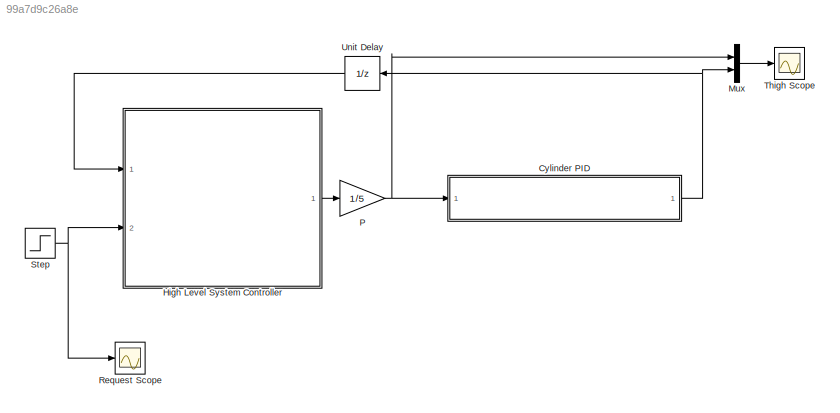
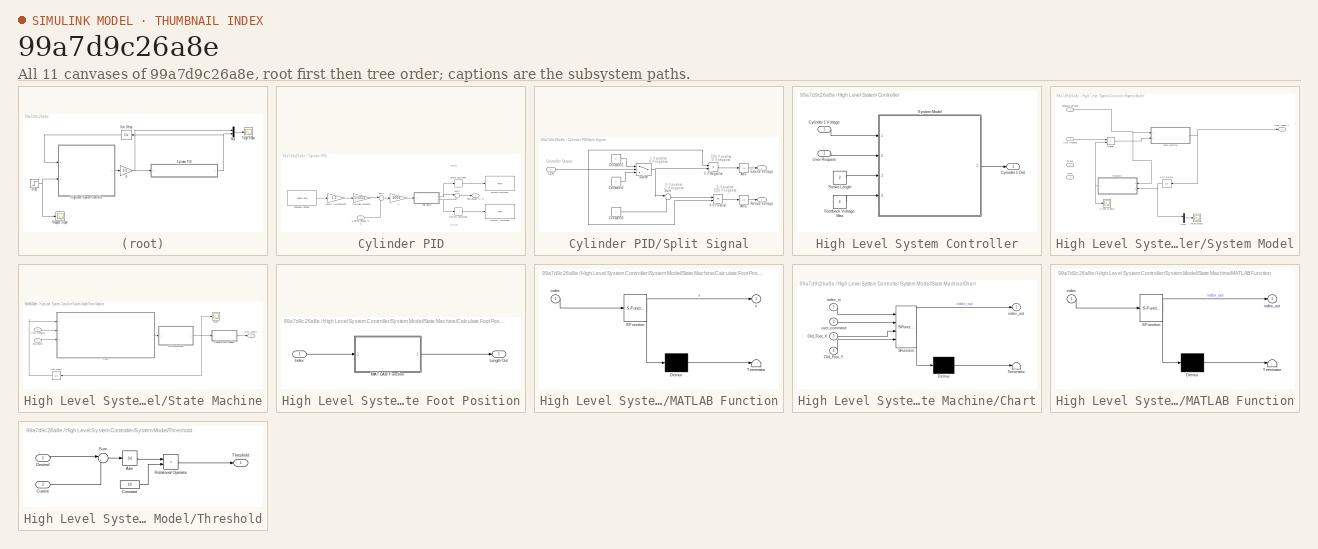
[diagram: thumbnail index - all 11 canvases of the model, root first then tree order]
MODEL slx_99a7d9c26a8e
KIND model
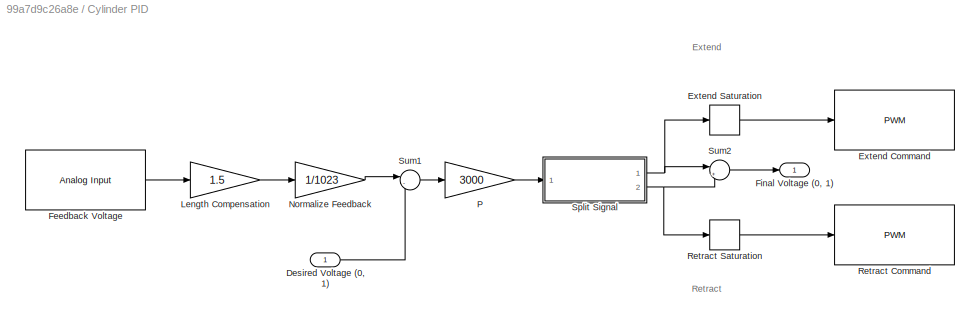
BLOCK [SubSystem] Cylinder PID
  Ports = [1, 1]
  RequestExecContextInheritance = off
BLOCK [Inport] Cylinder PID/Desired Voltage (0, 1)
  IconDisplay = Port number
BLOCK [Reference] Cylinder PID/Extend Command  REF=arduinolib/PWM
  Ports = [1]
  SourceBlock = arduinolib/PWM
  SourceType = Arduino PWM
  pinNumber = 5
BLOCK [MinMax] Cylinder PID/Extend Saturation
  Function = max
  InputSameDT = off
  OutDataTypeStr = int16
  OutMax = [255]
  OutMin = [0]
  Ports = [1, 1]
BLOCK [Reference] Cylinder PID/Feedback Voltage  REF=arduinolib/Analog Input
  Ports = [0, 1]
  SourceBlock = arduinolib/Analog Input
  SourceType = Arduino Analog Input
  pinNumber = 2
  sampleTime = -1
BLOCK [Outport] Cylinder PID/Final Voltage (0, 1)
  IconDisplay = Port number
BLOCK [Gain] Cylinder PID/Length Compensation
  Gain = 1.5
  OutDataTypeStr = Inherit: Inherit via internal rule
  ParamDataTypeStr = Inherit: Inherit via internal rule
  SaturateOnIntegerOverflow = off
BLOCK [Gain] Cylinder PID/Normalize Feedback
  Gain = 1/1023
  OutDataTypeStr = Inherit: Inherit via internal rule
  ParamDataTypeStr = Inherit: Inherit via internal rule
  SaturateOnIntegerOverflow = off
BLOCK [Gain] Cylinder PID/P
  Gain = 3000
  OutDataTypeStr = Inherit: Inherit via internal rule
  ParamDataTypeStr = Inherit: Inherit via internal rule
  SaturateOnIntegerOverflow = off
BLOCK [Reference] Cylinder PID/Retract Command  REF=arduinolib/PWM
  Ports = [1]
  SourceBlock = arduinolib/PWM
  SourceType = Arduino PWM
  pinNumber = 7
BLOCK [MinMax] Cylinder PID/Retract Saturation
  Function = max
  InputSameDT = off
  OutDataTypeStr = int16
  OutMax = [255]
  OutMin = [0]
  Ports = [1, 1]
BLOCK [SubSystem] Cylinder PID/Split Signal
  Ports = [1, 2]
  RequestExecContextInheritance = off
BLOCK [Product] Cylinder PID/Split Signal/0 If Positive
  InputSameDT = off
  OutDataTypeStr = Inherit: Inherit via internal rule
  Ports = [2, 1]
  RndMeth = Floor
  SaturateOnIntegerOverflow = off
BLOCK [Product] Cylinder PID/Split Signal/0 if Negative
  InputSameDT = off
  OutDataTypeStr = Inherit: Inherit via internal rule
  Ports = [2, 1]
  RndMeth = Floor
  SaturateOnIntegerOverflow = off
BLOCK [Abs] Cylinder PID/Split Signal/Abs
  SaturateOnIntegerOverflow = off
BLOCK [Abs] Cylinder PID/Split Signal/Abs1
  SaturateOnIntegerOverflow = off
BLOCK [Inport] Cylinder PID/Split Signal/C(S)
  IconDisplay = Port number
BLOCK [Constant] Cylinder PID/Split Signal/Constant1
BLOCK [Constant] Cylinder PID/Split Signal/Constant2
  Value = 0
BLOCK [Constant] Cylinder PID/Split Signal/Constant3
BLOCK [Outport] Cylinder PID/Split Signal/Extend Voltage
  IconDisplay = Port number
BLOCK [Outport] Cylinder PID/Split Signal/Retract Voltage
  IconDisplay = Port number
  Port = 2
BLOCK [Sum] Cylinder PID/Split Signal/Sum
  IconShape = round
  InputSameDT = off
  Inputs = |+-
  OutDataTypeStr = Inherit: Inherit via internal rule
  Ports = [2, 1]
  SaturateOnIntegerOverflow = off
BLOCK [Switch] Cylinder PID/Split Signal/Switch
  InputSameDT = off
  SaturateOnIntegerOverflow = off
BLOCK [Sum] Cylinder PID/Sum1
  IconShape = round
  InputSameDT = off
  Inputs = |-+
  OutDataTypeStr = Inherit: Inherit via internal rule
  Ports = [2, 1]
  SaturateOnIntegerOverflow = off
BLOCK [Sum] Cylinder PID/Sum2
  IconShape = round
  InputSameDT = off
  Inputs = |++
  OutDataTypeStr = Inherit: Inherit via internal rule
  Ports = [2, 1]
  SaturateOnIntegerOverflow = off
BLOCK [SubSystem] High Level System Controller
  Ports = [2, 1]
  RequestExecContextInheritance = off
BLOCK [Outport] High Level System Controller/Cylinder 1 Out
  IconDisplay = Port number
BLOCK [Inport] High Level System Controller/Cylinder 1 Voltage
  IconDisplay = Port number
  OutDataTypeStr = double
BLOCK [Constant] High Level System Controller/Feedback Voltage Max
  Value = 4
BLOCK [Constant] High Level System Controller/Stroke Length
  Value = 3
BLOCK [SubSystem] High Level System Controller/System Model
  Ports = [4, 1]
  RequestExecContextInheritance = off
BLOCK [Scope] High Level System Controller/System Model/Close to Equal
  Floating = off
  LimitDataPoints = off
  NumInputPorts = 1
  Ports = [1]
  SaveName = ScopeData5
  ShowLegends = off
  TimeRange = 1
  YMax = 2.8
  YMin = 2.53334
  ZoomMode = xonly
BLOCK [Inport] High Level System Controller/System Model/Feedback Voltage
  IconDisplay = Port number
BLOCK [Mux] High Level System Controller/System Model/Mux1
  DisplayOption = bar
  Inputs = 2
  Ports = [2, 1]
BLOCK [Outport] High Level System Controller/System Model/New Length 1
  IconDisplay = Port number
  OutDataTypeStr = double
BLOCK [Product] High Level System Controller/System Model/Product
  InputSameDT = off
  OutDataTypeStr = Inherit: Inherit via internal rule
  Ports = [2, 1]
  RndMeth = Floor
  SaturateOnIntegerOverflow = off
BLOCK [SubSystem] High Level System Controller/System Model/State Machine
  Ports = [2, 1]
  RequestExecContextInheritance = off
BLOCK [SubSystem] High Level System Controller/System Model/State Machine/Calculate Foot Position
  Ports = [1, 1]
  RequestExecContextInheritance = off
BLOCK [Inport] High Level System Controller/System Model/State Machine/Calculate Foot Position/Index
  IconDisplay = Port number
BLOCK [Outport] High Level System Controller/System Model/State Machine/Calculate Foot Position/Length Out
  IconDisplay = Port number
BLOCK [SubSystem] High Level System Controller/System Model/State Machine/Calculate Foot Position/MATLAB Function
  ErrorFcn = Stateflow.Translate.translate
  PermitHierarchicalResolution = ExplicitOnly
  Ports = [1, 1]
  RequestExecContextInheritance = off
  SFBlockType = MATLAB Function
  TreatAsAtomicUnit = on
BLOCK [Demux] High Level System Controller/System Model/State Machine/Calculate Foot Position/MATLAB Function/ Demux 
  Outputs = 1
  Ports = [1, 1]
BLOCK [S-Function] High Level System Controller/System Model/State Machine/Calculate Foot Position/MATLAB Function/ SFunction 
  EnableBusSupport = on
  FunctionName = sf_sfun
  PortCounts = [1 2]
  Ports = [1, 2]
  Tag = Stateflow S-Function SingleCylinderTest 1
BLOCK [Terminator] High Level System Controller/System Model/State Machine/Calculate Foot Position/MATLAB Function/ Terminator 
BLOCK [Inport] High Level System Controller/System Model/State Machine/Calculate Foot Position/MATLAB Function/index
  IconDisplay = Port number
BLOCK [Outport] High Level System Controller/System Model/State Machine/Calculate Foot Position/MATLAB Function/x
  IconDisplay = Port number
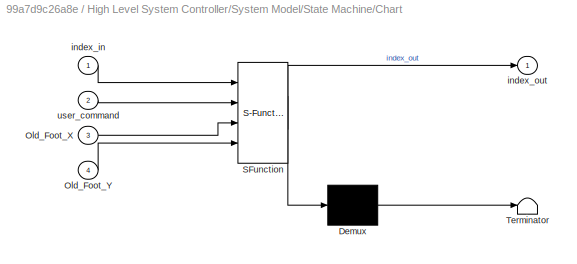
BLOCK [SubSystem] High Level System Controller/System Model/State Machine/Chart
  ErrorFcn = Stateflow.Translate.translate
  PermitHierarchicalResolution = ExplicitOnly
  Ports = [4, 1]
  RequestExecContextInheritance = off
  SFBlockType = Chart
  TreatAsAtomicUnit = on
BLOCK [Demux] High Level System Controller/System Model/State Machine/Chart/ Demux 
  Outputs = 1
  Ports = [1, 1]
BLOCK [S-Function] High Level System Controller/System Model/State Machine/Chart/ SFunction 
  EnableBusSupport = on
  FunctionName = sf_sfun
  PortCounts = [4 2]
  Ports = [4, 2]
  Tag = Stateflow S-Function SingleCylinderTest 3
BLOCK [Terminator] High Level System Controller/System Model/State Machine/Chart/ Terminator 
BLOCK [Inport] High Level System Controller/System Model/State Machine/Chart/Old_Foot_X
  IconDisplay = Port number
  Port = 3
BLOCK [Inport] High Level System Controller/System Model/State Machine/Chart/Old_Foot_Y
  IconDisplay = Port number
  Port = 4
BLOCK [Inport] High Level System Controller/System Model/State Machine/Chart/index_in
  IconDisplay = Port number
BLOCK [Outport] High Level System Controller/System Model/State Machine/Chart/index_out
  IconDisplay = Port number
BLOCK [Inport] High Level System Controller/System Model/State Machine/Chart/user_command
  IconDisplay = Port number
  Port = 2
BLOCK [SubSystem] High Level System Controller/System Model/State Machine/MATLAB Function
  ErrorFcn = Stateflow.Translate.translate
  PermitHierarchicalResolution = ExplicitOnly
  Ports = [1, 1]
  RequestExecContextInheritance = off
  SFBlockType = MATLAB Function
  TreatAsAtomicUnit = on
BLOCK [Demux] High Level System Controller/System Model/State Machine/MATLAB Function/ Demux 
  Outputs = 1
  Ports = [1, 1]
BLOCK [S-Function] High Level System Controller/System Model/State Machine/MATLAB Function/ SFunction 
  EnableBusSupport = on
  FunctionName = sf_sfun
  PortCounts = [1 2]
  Ports = [1, 2]
  Tag = Stateflow S-Function SingleCylinderTest 4
BLOCK [Terminator] High Level System Controller/System Model/State Machine/MATLAB Function/ Terminator 
BLOCK [Inport] High Level System Controller/System Model/State Machine/MATLAB Function/index
  IconDisplay = Port number
BLOCK [Outport] High Level System Controller/System Model/State Machine/MATLAB Function/index_out
  IconDisplay = Port number
BLOCK [Outport] High Level System Controller/System Model/State Machine/New Length
  IconDisplay = Port number
BLOCK [Inport] High Level System Controller/System Model/State Machine/Old Length
  IconDisplay = Port number
BLOCK [Scope] High Level System Controller/System Model/State Machine/Scope
  DataFormat = StructureWithTime
  Floating = off
  LimitDataPoints = off
  NumInputPorts = 1
  Ports = [1]
  SampleTime = 0
  SaveName = ScopeData2
  ShowLegends = off
BLOCK [UnitDelay] High Level System Controller/System Model/State Machine/Unit Delay1
  InputProcessing = Elements as channels (sample based)
  SampleTime = -1
BLOCK [Inport] High Level System Controller/System Model/State Machine/User Request
  IconDisplay = Port number
  Port = 2
BLOCK [Inport] High Level System Controller/System Model/Stroke
  IconDisplay = Port number
  Port = 3
BLOCK [Scope] High Level System Controller/System Model/Thigh Scope1
  Floating = off
  LimitDataPoints = off
  NumInputPorts = 1
  Ports = [1]
  SaveName = ScopeData4
  ShowLegends = off
  TimeRange = 1
  YMax = 2.8
  YMin = 2.53334
  ZoomMode = xonly
BLOCK [SubSystem] High Level System Controller/System Model/Threshold
  Ports = [2, 1]
  RequestExecContextInheritance = off
BLOCK [Abs] High Level System Controller/System Model/Threshold/Abs
  SaturateOnIntegerOverflow = off
BLOCK [Constant] High Level System Controller/System Model/Threshold/Constant
  Value = 10
BLOCK [Inport] High Level System Controller/System Model/Threshold/Current
  IconDisplay = Port number
  Port = 2
BLOCK [Inport] High Level System Controller/System Model/Threshold/Desired
  IconDisplay = Port number
BLOCK [RelationalOperator] High Level System Controller/System Model/Threshold/Relational Operator
  InputSameDT = off
  Operator = <
  OutDataTypeStr = boolean
  Ports = [2, 1]
BLOCK [Sum] High Level System Controller/System Model/Threshold/Sum
  IconShape = round
  InputSameDT = off
  Inputs = |+-
  OutDataTypeStr = Inherit: Inherit via internal rule
  Ports = [2, 1]
  SaturateOnIntegerOverflow = off
BLOCK [Outport] High Level System Controller/System Model/Threshold/Threshold
  IconDisplay = Port number
BLOCK [UnitDelay] High Level System Controller/System Model/Unit Delay1
  InputProcessing = Elements as channels (sample based)
  SampleTime = -1
BLOCK [Inport] High Level System Controller/System Model/User Request
  IconDisplay = Port number
  Port = 2
BLOCK [Inport] High Level System Controller/System Model/vMax
  IconDisplay = Port number
  Port = 4
BLOCK [Inport] High Level System Controller/User Request
  IconDisplay = Port number
  Port = 2
BLOCK [Mux] Mux
  DisplayOption = bar
  Inputs = 2
  Ports = [2, 1]
BLOCK [Gain] P
  Gain = 1/5
  OutDataTypeStr = Inherit: Inherit via internal rule
  ParamDataTypeStr = Inherit: Inherit via internal rule
  SaturateOnIntegerOverflow = off
BLOCK [Scope] Request Scope
  Floating = off
  LimitDataPoints = off
  NumInputPorts = 1
  Ports = [1]
  SaveName = ScopeData1
  ShowLegends = off
  TimeRange = 1
  YMax = 1.05
  YMin = 0.95
BLOCK [Step] Step
  SampleTime = 0.01
  Time = 0
BLOCK [Scope] Thigh Scope
  Floating = off
  LimitDataPoints = off
  NumInputPorts = 1
  Ports = [1]
  ShowLegends = off
  TimeRange = 1
  YMax = 2
  YMin = 1.88
  ZoomMode = xonly
BLOCK [UnitDelay] Unit Delay
  InputProcessing = Elements as channels (sample based)
  SampleTime = -1
ANNOTATION Cylinder PID: Extend
ANNOTATION Cylinder PID: Retract
ANNOTATION Cylinder PID/Split Signal: 0 if positive -1 if negative
ANNOTATION Cylinder PID/Split Signal: 0 if positive C(S) if negative
ANNOTATION Cylinder PID/Split Signal: 1 if positive 0 if negative
ANNOTATION Cylinder PID/Split Signal: C(S) if positive 0 if negative
ANNOTATION Cylinder PID/Split Signal: Controller Output
LINE Cylinder PID/Desired Voltage (0, 1):1 -> Cylinder PID/Sum1:2
LINE Cylinder PID/Extend Saturation:1 -> Cylinder PID/Extend Command:1
LINE Cylinder PID/Feedback Voltage:1 -> Cylinder PID/Length Compensation:1
LINE Cylinder PID/Length Compensation:1 -> Cylinder PID/Normalize Feedback:1
LINE Cylinder PID/Normalize Feedback:1 -> Cylinder PID/Sum1:1
LINE Cylinder PID/P:1 -> Cylinder PID/Split Signal:1
LINE Cylinder PID/Retract Saturation:1 -> Cylinder PID/Retract Command:1
LINE Cylinder PID/Split Signal/0 If Positive:1 -> Cylinder PID/Split Signal/Abs1:1
LINE Cylinder PID/Split Signal/0 if Negative:1 -> Cylinder PID/Split Signal/Abs:1
LINE Cylinder PID/Split Signal/Abs1:1 -> Cylinder PID/Split Signal/Retract Voltage:1
LINE Cylinder PID/Split Signal/Abs:1 -> Cylinder PID/Split Signal/Extend Voltage:1
NET Cylinder PID/Split Signal/C(S):1 -> Cylinder PID/Split Signal/0 If Positive:2, Cylinder PID/Split Signal/0 if Negative:1, Cylinder PID/Split Signal/Switch:2
LINE Cylinder PID/Split Signal/Constant1:1 -> Cylinder PID/Split Signal/Switch:1
LINE Cylinder PID/Split Signal/Constant2:1 -> Cylinder PID/Split Signal/Switch:3
LINE Cylinder PID/Split Signal/Constant3:1 -> Cylinder PID/Split Signal/Sum:2
LINE Cylinder PID/Split Signal/Sum:1 -> Cylinder PID/Split Signal/0 If Positive:1
NET Cylinder PID/Split Signal/Switch:1 -> Cylinder PID/Split Signal/0 if Negative:2, Cylinder PID/Split Signal/Sum:1
NET Cylinder PID/Split Signal:1 -> Cylinder PID/Extend Saturation:1, Cylinder PID/Sum2:1
NET Cylinder PID/Split Signal:2 -> Cylinder PID/Retract Saturation:1, Cylinder PID/Sum2:2
LINE Cylinder PID/Sum1:1 -> Cylinder PID/P:1
LINE Cylinder PID/Sum2:1 -> Cylinder PID/Final Voltage (0, 1):1
NET Cylinder PID:1 -> Mux:2, Unit Delay:1
LINE High Level System Controller/Cylinder 1 Voltage:1 -> High Level System Controller/System Model:1
LINE High Level System Controller/Feedback Voltage Max:1 -> High Level System Controller/System Model:4
LINE High Level System Controller/Stroke Length:1 -> High Level System Controller/System Model:3
NET High Level System Controller/System Model/Feedback Voltage:1 -> High Level System Controller/System Model/State Machine:1, High Level System Controller/System Model/Threshold:1
LINE High Level System Controller/System Model/Mux1:1 -> High Level System Controller/System Model/Thigh Scope1:1
LINE High Level System Controller/System Model/Product:1 -> High Level System Controller/System Model/State Machine:2
LINE High Level System Controller/System Model/State Machine/Calculate Foot Position/Index:1 -> High Level System Controller/System Model/State Machine/Calculate Foot Position/MATLAB Function:1
LINE High Level System Controller/System Model/State Machine/Calculate Foot Position/MATLAB Function:1 -> High Level System Controller/System Model/State Machine/Calculate Foot Position/Length Out:1
LINE High Level System Controller/System Model/State Machine/Calculate Foot Position:1 -> High Level System Controller/System Model/State Machine/New Length:1
LINE High Level System Controller/System Model/State Machine/Chart:1 -> High Level System Controller/System Model/State Machine/MATLAB Function:1
NET High Level System Controller/System Model/State Machine/MATLAB Function:1 -> High Level System Controller/System Model/State Machine/Calculate Foot Position:1, High Level System Controller/System Model/State Machine/Scope:1, High Level System Controller/System Model/State Machine/Unit Delay1:1
LINE High Level System Controller/System Model/State Machine/Old Length:1 -> High Level System Controller/System Model/State Machine/Chart:3
LINE High Level System Controller/System Model/State Machine/Unit Delay1:1 -> High Level System Controller/System Model/State Machine/Chart:1
LINE High Level System Controller/System Model/State Machine/User Request:1 -> High Level System Controller/System Model/State Machine/Chart:2
NET High Level System Controller/System Model/State Machine:1 -> High Level System Controller/System Model/New Length 1:1, High Level System Controller/System Model/Unit Delay1:1
LINE High Level System Controller/System Model/Threshold/Abs:1 -> High Level System Controller/System Model/Threshold/Relational Operator:1
LINE High Level System Controller/System Model/Threshold/Constant:1 -> High Level System Controller/System Model/Threshold/Relational Operator:2
LINE High Level System Controller/System Model/Threshold/Current:1 -> High Level System Controller/System Model/Threshold/Sum:2
LINE High Level System Controller/System Model/Threshold/Desired:1 -> High Level System Controller/System Model/Threshold/Sum:1
LINE High Level System Controller/System Model/Threshold/Relational Operator:1 -> High Level System Controller/System Model/Threshold/Threshold:1
LINE High Level System Controller/System Model/Threshold/Sum:1 -> High Level System Controller/System Model/Threshold/Abs:1
NET High Level System Controller/System Model/Threshold:1 -> High Level System Controller/System Model/Close to Equal:1, High Level System Controller/System Model/Product:2
NET High Level System Controller/System Model/Unit Delay1:1 -> High Level System Controller/System Model/Mux1:1, High Level System Controller/System Model/Threshold:2
LINE High Level System Controller/System Model/User Request:1 -> High Level System Controller/System Model/Product:1
LINE High Level System Controller/System Model:1 -> High Level System Controller/Cylinder 1 Out:1
LINE High Level System Controller/User Request:1 -> High Level System Controller/System Model:2
LINE High Level System Controller:1 -> P:1
LINE Mux:1 -> Thigh Scope:1
NET P:1 -> Cylinder PID:1, Mux:1
NET Step:1 -> High Level System Controller:2, Request Scope:1
LINE Unit Delay:1 -> High Level System Controller:1
note: NET lines group one-source signal fan-out (src -> all destinations, sorted); 1:1 wires keep LINE
